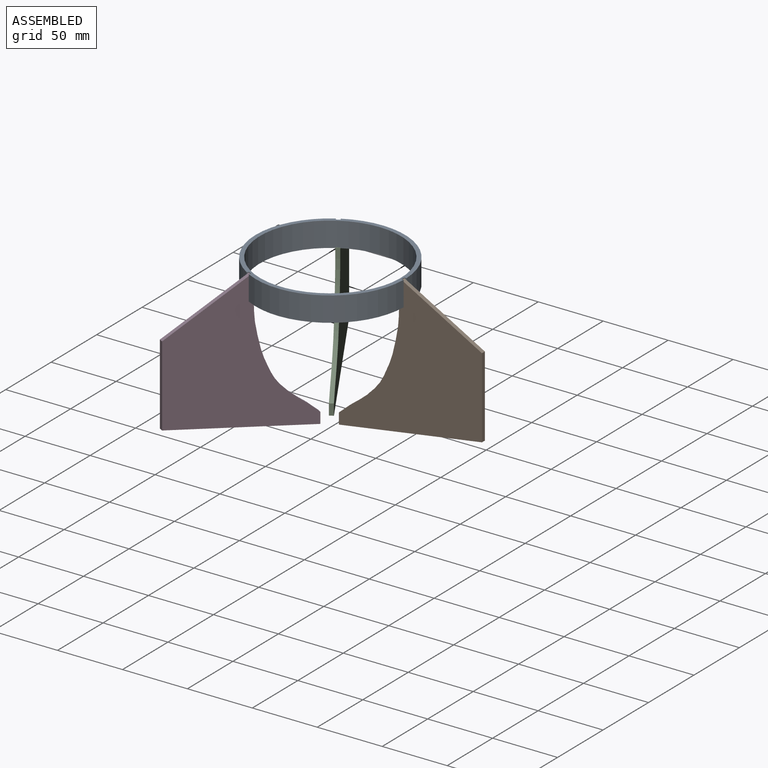
[diagram: assembled view]
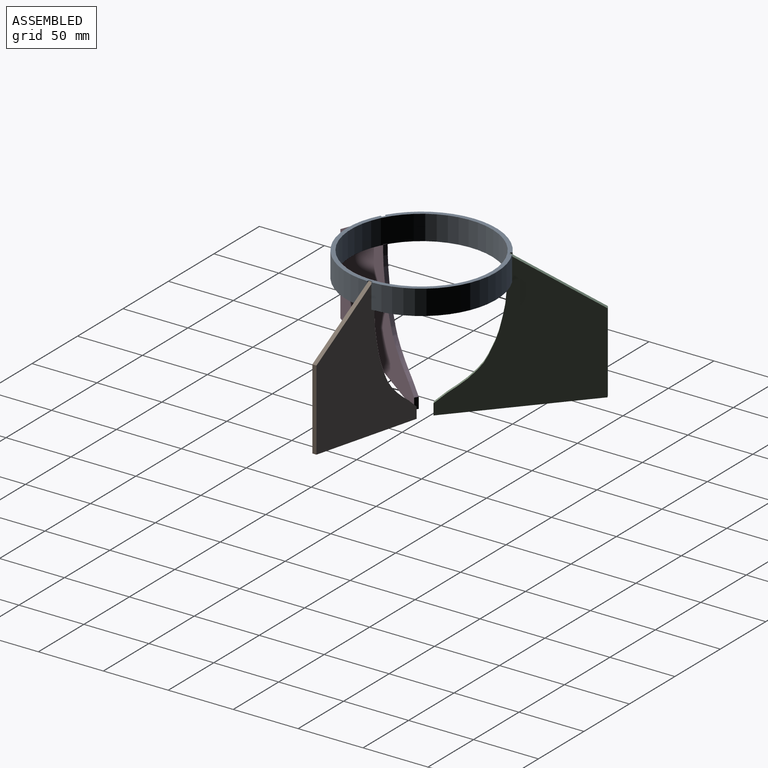
[diagram: assembled view, second angle]
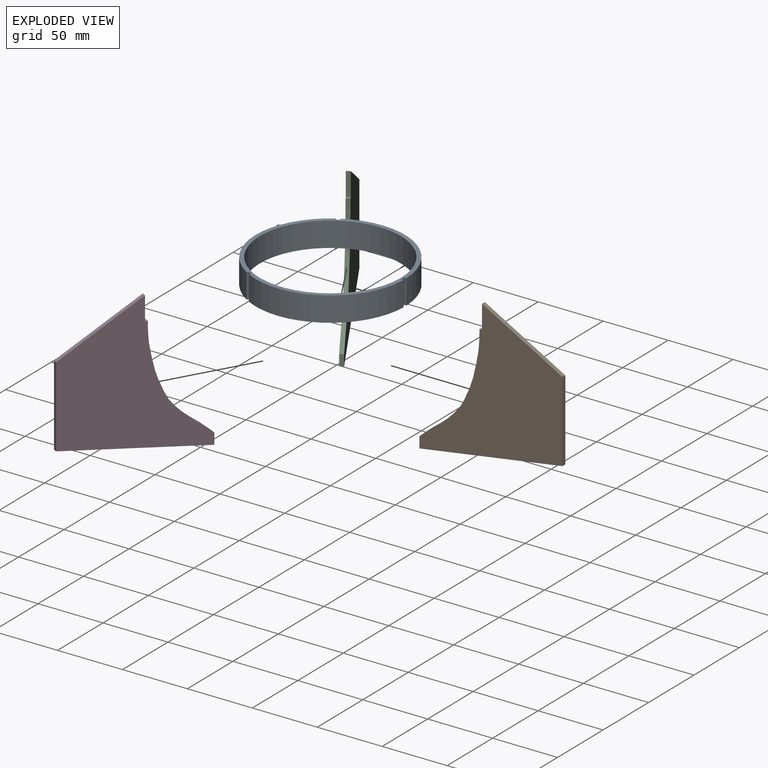
[diagram: exploded view]
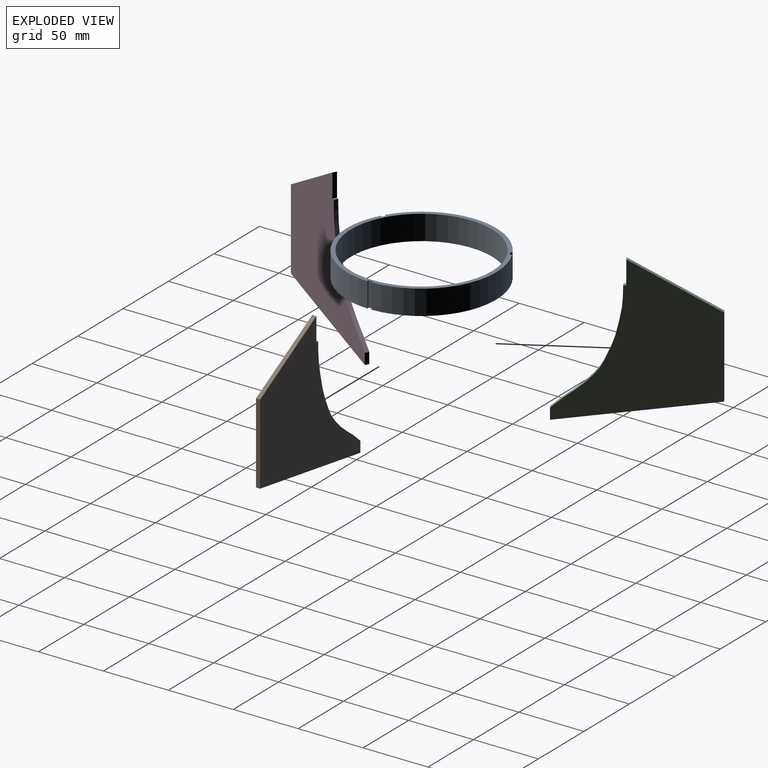
[diagram: exploded view, second angle]
ASSEMBLY  parts=4 mates=3
PART A: 15 faces, bbox 115.1x115x19.1 mm
  f0: plane 19.05x1.57mm, normal (1,0,0), area 29.8mm2, adj f1,f11,f13,f14
  f1: cylinder r=57.53mm len=84.88mm, axis (0,0,-1), area 2234.5mm2, adj f0,f2,f13,f14
  f2: plane 19.05x1.36mm, normal (0.5,-0.87,0), area 29.8mm2, adj f1,f3,f13,f14
  f3: plane 19.05x2.77mm, normal (-0.87,-0.5,0), area 60.9mm2, adj f2,f4,f13,f14
  f4: plane 19.05x1.36mm, normal (-0.5,0.87,0), area 29.8mm2, adj f3,f5,f13,f14
  f5: cylinder r=57.53mm len=98.01mm, axis (0,0,-1), area 2234.5mm2, adj f4,f6,f13,f14
  f6: plane 19.05x1.36mm, normal (0.5,0.87,0), area 29.8mm2, adj f5,f7,f13,f14
  f7: plane 19.05x2.77mm, normal (0.87,-0.5,0), area 60.9mm2, adj f6,f8,f13,f14
  f8: plane 19.05x1.36mm, normal (-0.5,-0.87,0), area 29.8mm2, adj f7,f9,f13,f14
  f9: cylinder r=57.53mm len=84.88mm, axis (0,0,-1), area 2234.5mm2, adj f8,f10,f13,f14
  f10: plane 19.05x1.57mm, normal (-1,0,0), area 29.8mm2, adj f9,f11,f13,f14
  f11: plane 19.05x3.2mm, normal (0,1,0), area 60.9mm2, adj f0,f10,f13,f14
  f12: cylinder r=54.36mm len=108.71mm, axis (0,0,-1), area 6506.1mm2, adj f13,f14
  f13: plane 115.06x115.04mm, normal (0,0,1), area 1100.9mm2, adj f0,f1,f2,f3,f4,f5,f6,f7
  f14: plane 115.06x115.04mm, normal (0,0,-1), area 1100.9mm2, adj f0,f1,f2,f3,f4,f5,f6,f7
PART B: 9 faces, bbox 110.2x113.6x3.2 mm
  f0: plane 8.46x3.18mm, normal (-1,0,0), area 26.9mm2, adj f1,f6,f7,f8
  f1: extruded ~86.95x46.35mm, area 328.4mm2, adj f0,f2,f7,f8
  f2: plane 3.18x1.92mm, normal (0,-1,0), area 6.1mm2, adj f1,f3,f7,f8
  f3: plane 18.17x3.18mm, normal (-1,0,0), area 57.7mm2, adj f2,f4,f7,f8
  f4: plane 61.91x34.44mm, normal (0.49,-0.87,0), area 224.9mm2, adj f3,f5,f7,f8
  f5: plane 62.02x3.18mm, normal (1,0,0), area 196.9mm2, adj f4,f6,f7,f8
  f6: plane 110.19x17.11mm, normal (0.15,0.99,0), area 354mm2, adj f0,f5,f7,f8
  f7: plane 113.57x110.19mm, normal (0,0,1), area 6726.4mm2, adj f0,f1,f2,f3,f4,f5,f6
  f8: plane 113.57x110.19mm, normal (0,0,-1), area 6726.4mm2, adj f0,f1,f2,f3,f4,f5,f6
PART C: same geometry as B
PART D: same geometry as B
PLACE A rot(axis=(0.71,0.71,0),180deg) t=(0.01,0,9.53)mm
PLACE B rot(axis=(-1,0,0),90deg) t=(62.57,-1.59,-82.52)mm
PLACE C rot(axis=(-0.38,-0.65,0.65),138.6deg) t=(-29.9,54.97,-82.52)mm
PLACE D rot(axis=(-0.38,0.65,-0.65),138.6deg) t=(-32.64,-53.39,-82.52)mm
MATE cylindrical C.f3 <-> A.f7  axis (0.5,-0.87,0) through (-27.96,48.45,0)mm
MATE cylindrical D.f3 <-> A.f3  axis (0.5,0.87,0) through (-27.96,-48.45,0)mm
MATE cylindrical B.f3 <-> A.f11  axis (-1,0,0) through (55.95,0,0)mm
